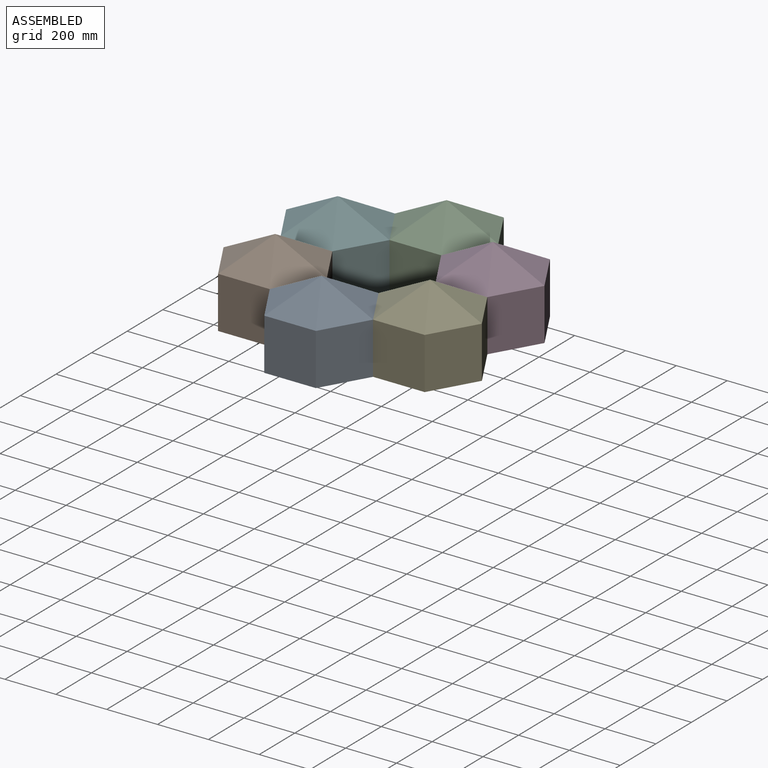
[diagram: assembled view]
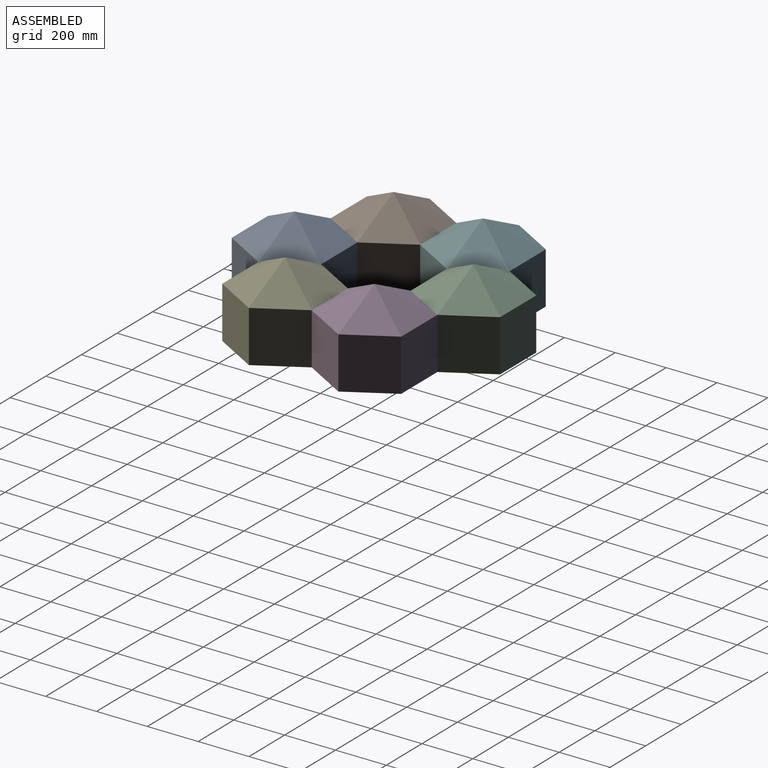
[diagram: assembled view, second angle]
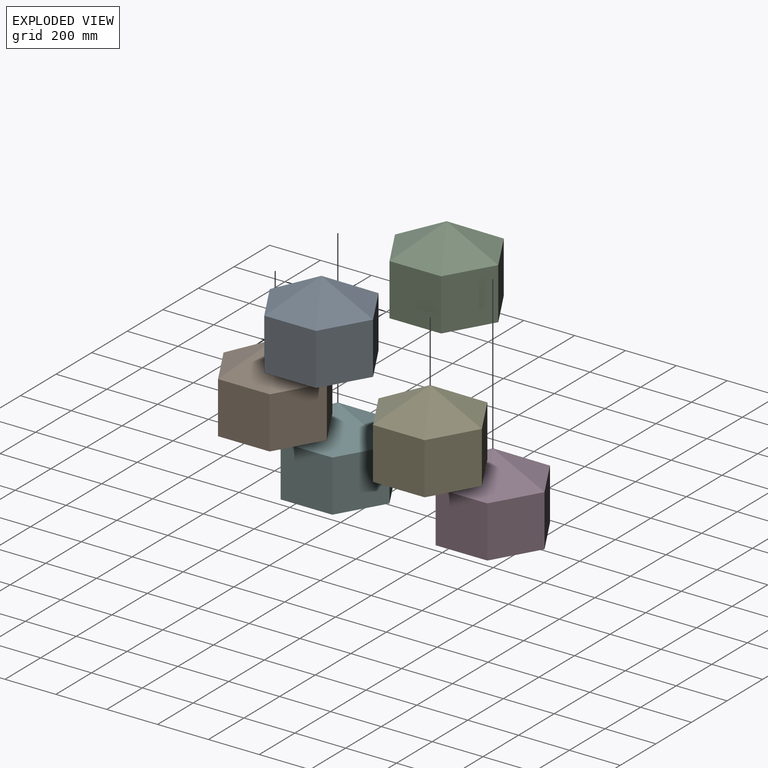
[diagram: exploded view]
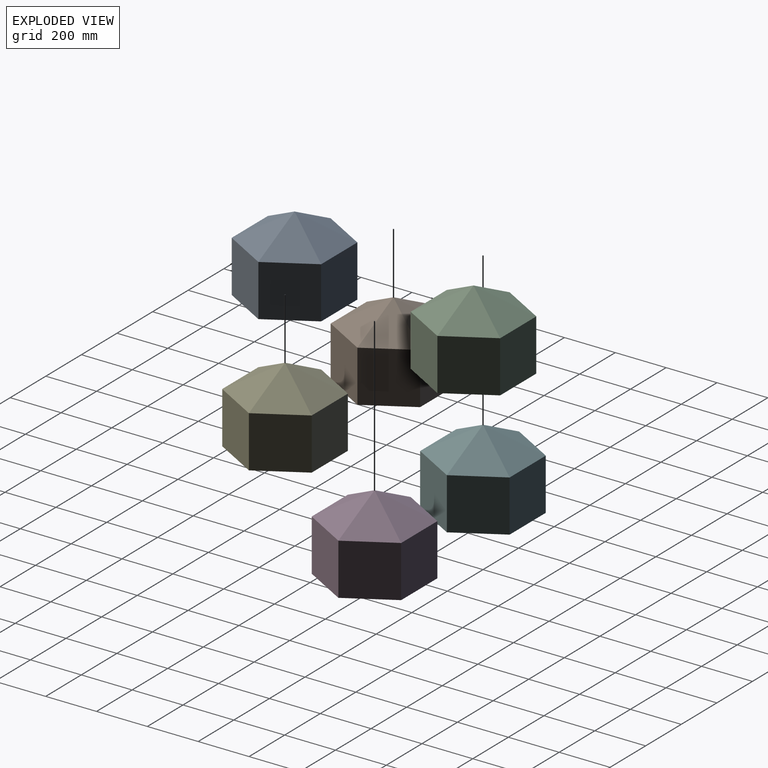
[diagram: exploded view, second angle]
ASSEMBLY  parts=6 mates=5
PART A: 14 faces, bbox 406.4x352x304.8 mm
  f0: plane 203.2x203.2mm, normal (0,1,0), area 41290.2mm2, adj f1,f5,f7,f11
  f1: plane 203.2x176.01mm, normal (-0.87,0.5,0), area 41290.2mm2, adj f0,f2,f7,f9
  f2: plane 203.2x175.95mm, normal (-0.87,-0.5,0), area 41290.2mm2, adj f1,f3,f7,f8
  f3: plane 203.2x203.2mm, normal (0,-1,0), area 41290.2mm2, adj f2,f4,f7,f10
  f4: plane 203.2x176.01mm, normal (0.87,-0.5,0), area 41290.2mm2, adj f3,f5,f7,f12
  f5: plane 203.2x175.95mm, normal (0.87,0.5,0), area 41290.2mm2, adj f0,f4,f7,f13
  f6: plane 0.48x0.42mm, normal (0,0,1), area 0.2mm2, adj f8,f9,f10,f11,f12,f13
  f7: plane 406.4x352.01mm, normal (0,0,-1), area 107275.2mm2, adj f0,f1,f2,f3,f4,f5
  f8: plane 203.08x176.01mm, normal (-0.43,-0.25,0.87), area 20651.2mm2, adj f2,f6,f9,f10
  f9: plane 203.08x176.01mm, normal (-0.43,0.25,0.87), area 20651.2mm2, adj f1,f6,f8,f11
  f10: plane 203.2x175.8mm, normal (0,-0.5,0.87), area 20651.2mm2, adj f3,f6,f8,f12
  f11: plane 203.2x175.8mm, normal (0,0.5,0.87), area 20651.2mm2, adj f0,f6,f9,f13
  f12: plane 203.08x176.01mm, normal (0.43,-0.25,0.87), area 20651.2mm2, adj f4,f6,f10,f13
  f13: plane 203.08x176.01mm, normal (0.43,0.25,0.87), area 20651.2mm2, adj f5,f6,f11,f12
PART B: same geometry as A
PART C: same geometry as A
PART D: same geometry as A
PART E: same geometry as A
PART F: same geometry as A
PLACE A t=(-224.72,-133.73,21.31)mm
PLACE B t=(-529.57,42.15,21.31)mm
PLACE C t=(-224.93,570.17,21.31)mm
PLACE D t=(79.93,394.29,21.31)mm
PLACE E t=(80.03,42.33,21.31)mm
PLACE F t=(-529.67,394.11,21.31)mm
MATE fastened B.f7 <-> A.f7  axis (0,0,-1) through (-326.37,217.34,21.31)mm
MATE fastened F.f7 <-> B.f7  axis (0,0,-1) through (-428.02,393.28,21.31)mm
MATE fastened C.f7 <-> F.f7  axis (0,0,-1) through (-326.47,569.29,21.31)mm
MATE fastened E.f7 <-> D.f7  axis (0,0,-1) through (-21.62,393.4,21.31)mm
MATE fastened A.f7 <-> E.f7  axis (0,0,-1) through (-123.17,217.4,21.31)mm
